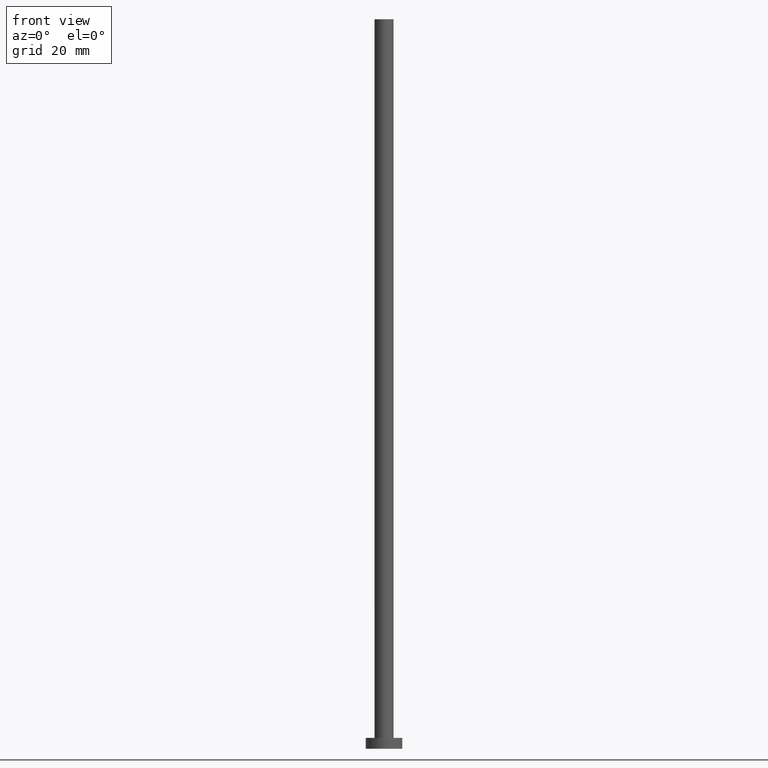
[diagram: clean part render]
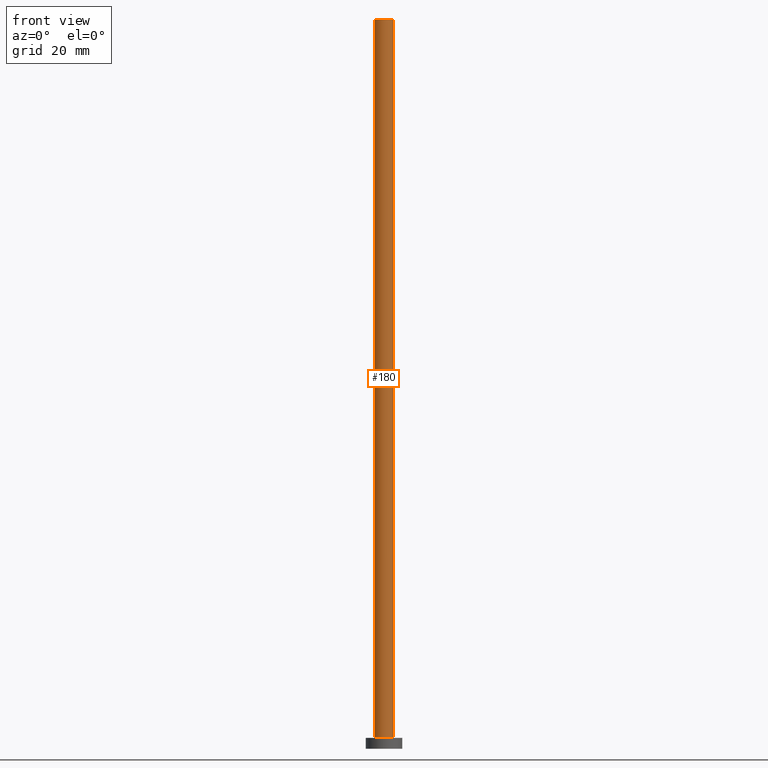
[diagram: same view with one face highlighted and labeled with its STEP entity id]
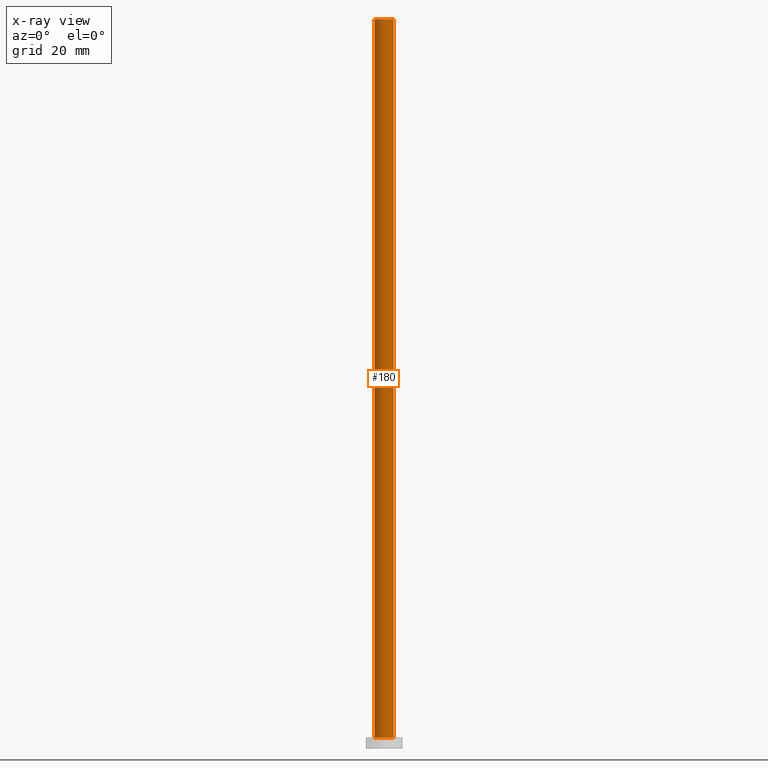
[diagram: x-ray of the same camera — body ghosted, the highlighted face saturated]
A machine part, front view. The second image highlights one B-rep face of the part: STEP entity #180.
The next image is the same camera in x-ray: the body ghosted, the highlighted face saturated — about 0% of this face is hidden behind the body in this view.
In plain terms, the highlighted cylindrical surface (edge-blend (fillet) strip) has radius 2.6 mm, axis along (-0, -0, -1).
Its self-contained STEP definition (entity closure, byte-faithful):
#6 = VECTOR ( 'NONE', #127, 1000.000000000000000 ) ;
#9 = CARTESIAN_POINT ( 'NONE',  ( 0.000000000000000000, 0.000000000000000000, 200.0000000000000000 ) ) ;
#20 = ORIENTED_EDGE ( 'NONE', *, *, #169, .F. ) ;
#21 = VERTEX_POINT ( 'NONE', #204 ) ;
#26 = CIRCLE ( 'NONE', #113, 2.600000000000000089 ) ;
#28 = AXIS2_PLACEMENT_3D ( 'NONE', #161, #128, #108 ) ;
#30 = VERTEX_POINT ( 'NONE', #155 ) ;
#36 = ORIENTED_EDGE ( 'NONE', *, *, #159, .F. ) ;
#37 = CARTESIAN_POINT ( 'NONE',  ( 0.000000000000000000, 0.000000000000000000, 3.000000000000000000 ) ) ;
#45 = DIRECTION ( 'NONE',  ( 1.000000000000000000, 0.000000000000000000, 0.000000000000000000 ) ) ;
#63 = DIRECTION ( 'NONE',  ( -0.000000000000000000, -0.000000000000000000, -1.000000000000000000 ) ) ;
#66 = DIRECTION ( 'NONE',  ( 0.000000000000000000, 0.000000000000000000, 1.000000000000000000 ) ) ;
#67 = CARTESIAN_POINT ( 'NONE',  ( 2.600000000000000089, 3.184081677783118191E-16, 3.000000000000000000 ) ) ;
#83 = LINE ( 'NONE', #229, #6 ) ;
#87 = CIRCLE ( 'NONE', #208, 2.600000000000000089 ) ;
#88 = FACE_OUTER_BOUND ( 'NONE', #211, .T. ) ;
#99 = VECTOR ( 'NONE', #63, 1000.000000000000000 ) ;
#104 = VERTEX_POINT ( 'NONE', #135 ) ;
#107 = CYLINDRICAL_SURFACE ( 'NONE', #28, 2.600000000000000089 ) ;
#108 = DIRECTION ( 'NONE',  ( -1.000000000000000000, 0.000000000000000000, 0.000000000000000000 ) ) ;
#110 = EDGE_CURVE ( 'NONE', #104, #196, #26, .T. ) ;
#113 = AXIS2_PLACEMENT_3D ( 'NONE', #37, #139, #175 ) ;
#127 = DIRECTION ( 'NONE',  ( -0.000000000000000000, -0.000000000000000000, -1.000000000000000000 ) ) ;
#128 = DIRECTION ( 'NONE',  ( -0.000000000000000000, -0.000000000000000000, -1.000000000000000000 ) ) ;
#135 = CARTESIAN_POINT ( 'NONE',  ( -2.600000000000000089, 0.000000000000000000, 3.000000000000000000 ) ) ;
#139 = DIRECTION ( 'NONE',  ( 0.000000000000000000, 0.000000000000000000, 1.000000000000000000 ) ) ;
#155 = CARTESIAN_POINT ( 'NONE',  ( -2.600000000000000089, 0.000000000000000000, 200.0000000000000000 ) ) ;
#159 = EDGE_CURVE ( 'NONE', #30, #21, #87, .T. ) ;
#161 = CARTESIAN_POINT ( 'NONE',  ( 0.000000000000000000, 0.000000000000000000, 200.0000000000000000 ) ) ;
#165 = LINE ( 'NONE', #188, #99 ) ;
#169 = EDGE_CURVE ( 'NONE', #21, #196, #83, .T. ) ;
#172 = ORIENTED_EDGE ( 'NONE', *, *, #110, .T. ) ;
#175 = DIRECTION ( 'NONE',  ( 1.000000000000000000, 0.000000000000000000, 0.000000000000000000 ) ) ;
#180 = ADVANCED_FACE ( 'NONE', ( #88 ), #107, .T. ) ;
#188 = CARTESIAN_POINT ( 'NONE',  ( -2.600000000000000089, 0.000000000000000000, 200.0000000000000000 ) ) ;
#196 = VERTEX_POINT ( 'NONE', #67 ) ;
#197 = ORIENTED_EDGE ( 'NONE', *, *, #237, .T. ) ;
#204 = CARTESIAN_POINT ( 'NONE',  ( 2.600000000000000089, 3.184081677783118191E-16, 200.0000000000000000 ) ) ;
#208 = AXIS2_PLACEMENT_3D ( 'NONE', #9, #66, #45 ) ;
#211 = EDGE_LOOP ( 'NONE', ( #20, #36, #197, #172 ) ) ;
#229 = CARTESIAN_POINT ( 'NONE',  ( 2.600000000000000089, 3.184081677783118191E-16, 200.0000000000000000 ) ) ;
#237 = EDGE_CURVE ( 'NONE', #30, #104, #165, .T. ) ;